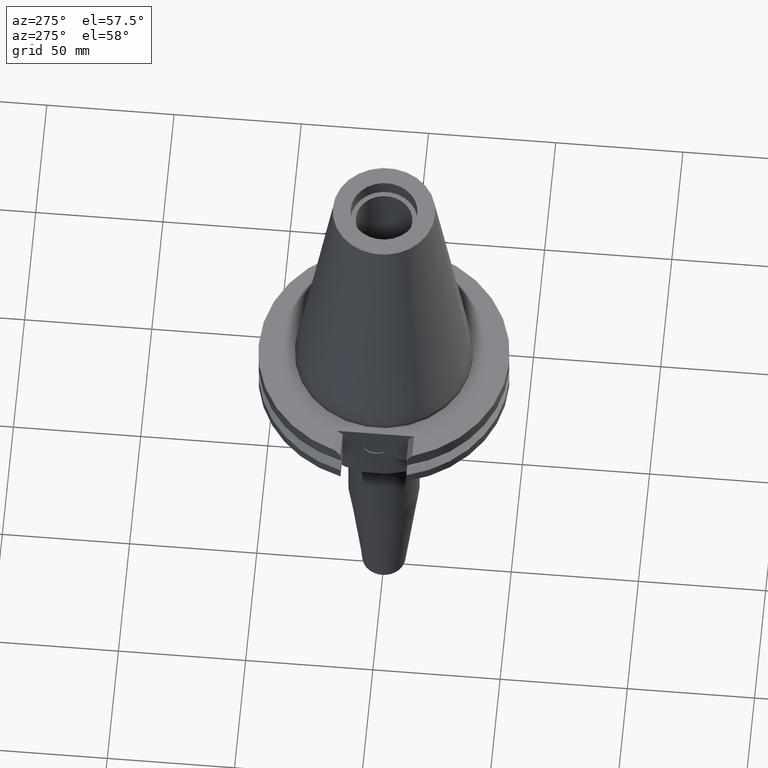
[diagram: clean part render]
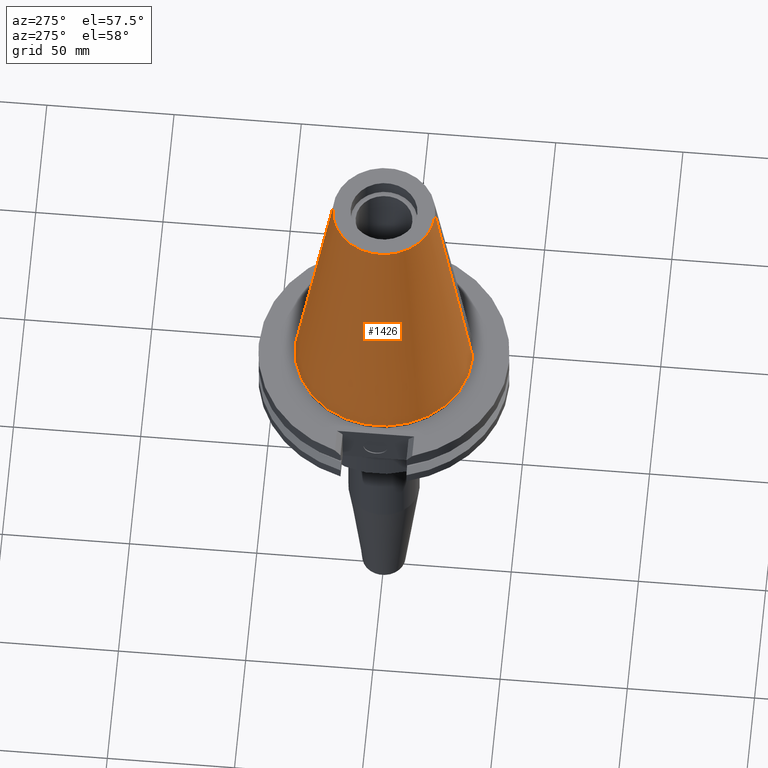
[diagram: same view with one face highlighted and labeled with its STEP entity id]
A machine part, auxiliary view. The second image highlights one B-rep face of the part: STEP entity #1426.
In plain terms, the highlighted conical surface has half-angle 8.297 deg.
Its self-contained STEP definition (entity closure, byte-faithful):
#17=CARTESIAN_POINT('',(0.E0,0.E0,1.016E2));
#18=DIRECTION('',(0.E0,0.E0,-1.E0));
#19=DIRECTION('',(0.E0,-1.E0,0.E0));
#20=AXIS2_PLACEMENT_3D('',#17,#18,#19);
#50=DIRECTION('',(0.E0,-1.443069799457E-1,-9.895329683942E-1));
#51=VECTOR('',#50,1.026746993229E2);
#52=CARTESIAN_POINT('',(0.E0,-2.010832422387E1,1.016E2));
#53=LINE('',#52,#51);
#57=CARTESIAN_POINT('',(0.E0,0.E0,8.242295734817E-13));
#58=DIRECTION('',(0.E0,0.E0,-1.E0));
#59=DIRECTION('',(0.E0,-1.E0,0.E0));
#60=AXIS2_PLACEMENT_3D('',#57,#58,#59);
#65=DIRECTION('',(0.E0,1.443069799457E-1,-9.895329683942E-1));
#66=VECTOR('',#65,1.026746993229E2);
#67=CARTESIAN_POINT('',(0.E0,2.010832422387E1,1.016E2));
#68=LINE('',#67,#66);
#1196=CARTESIAN_POINT('',(0.E0,-2.010832422388E1,1.016E2));
#1197=CARTESIAN_POINT('',(0.E0,2.010832422388E1,1.016E2));
#1198=VERTEX_POINT('',#1196);
#1199=VERTEX_POINT('',#1197);
#1386=CARTESIAN_POINT('',(0.E0,3.4925E1,4.689582056017E-13));
#1387=VERTEX_POINT('',#1386);
#1388=CARTESIAN_POINT('',(0.E0,-3.4925E1,4.689582056017E-13));
#1389=VERTEX_POINT('',#1388);
#1412=CARTESIAN_POINT('',(0.E0,0.E0,5.08E1));
#1413=DIRECTION('',(0.E0,0.E0,-1.E0));
#1414=DIRECTION('',(0.E0,-1.E0,0.E0));
#1415=AXIS2_PLACEMENT_3D('',#1412,#1413,#1414);
#1416=CONICAL_SURFACE('',#1415,2.751666211194E1,8.29715E0);
#1418=ORIENTED_EDGE('',*,*,#1417,.F.);
#1419=ORIENTED_EDGE('',*,*,#1399,.F.);
#1421=ORIENTED_EDGE('',*,*,#1420,.T.);
#1423=ORIENTED_EDGE('',*,*,#1422,.T.);
#1424=EDGE_LOOP('',(#1418,#1419,#1421,#1423));
#1425=FACE_OUTER_BOUND('',#1424,.F.);
#21=CIRCLE('',#20,2.010832422388E1);
#61=CIRCLE('',#60,3.4925E1);
#1399=EDGE_CURVE('',#1198,#1199,#21,.T.);
#1417=EDGE_CURVE('',#1199,#1387,#68,.T.);
#1420=EDGE_CURVE('',#1198,#1389,#53,.T.);
#1422=EDGE_CURVE('',#1389,#1387,#61,.T.);
#1426=ADVANCED_FACE('',(#1425),#1416,.T.);